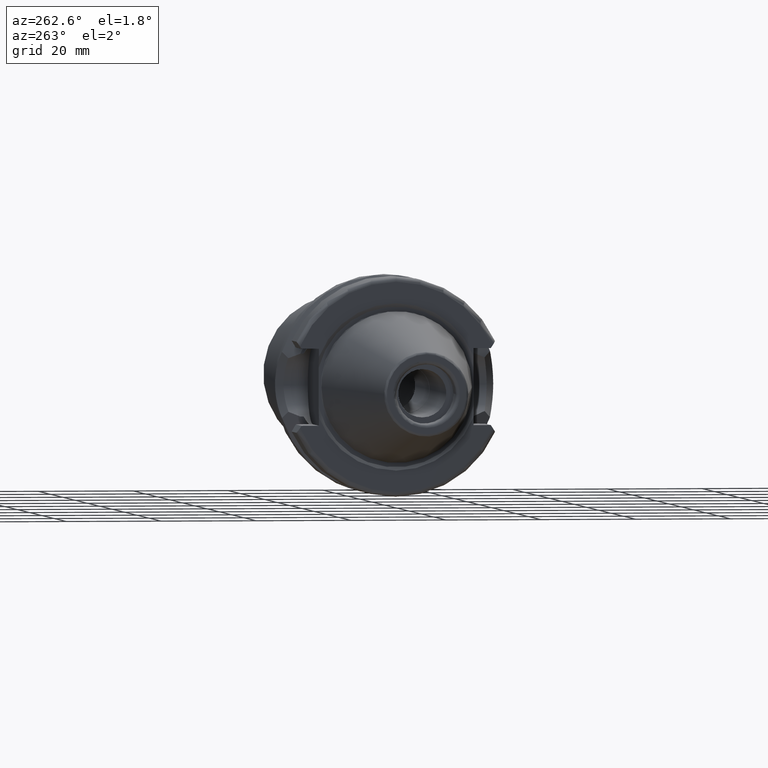
[diagram: clean part render]
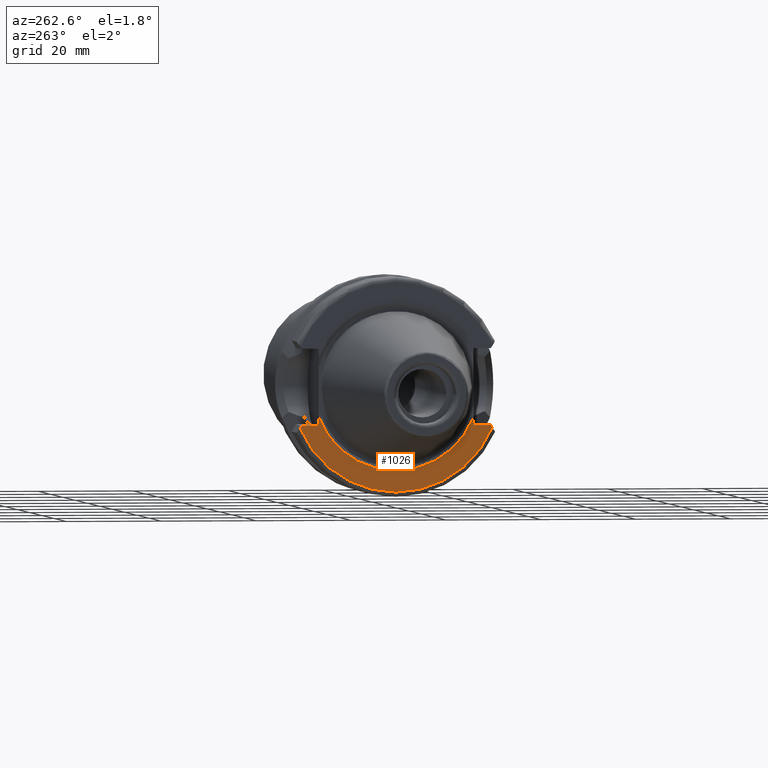
[diagram: same view with one face highlighted and labeled with its STEP entity id]
A machine part, auxiliary view. The second image highlights one B-rep face of the part: STEP entity #1026.
In plain terms, the highlighted planar face has unit normal (-1, -0, 0).
Its self-contained STEP definition (entity closure, byte-faithful):
#86=PLANE('',#1147);
#105=LINE('',#1712,#159);
#113=LINE('',#1886,#167);
#127=LINE('',#1938,#181);
#128=LINE('',#1945,#182);
#133=LINE('',#1972,#187);
#134=LINE('',#1973,#188);
#159=VECTOR('',#1289,10.);
#167=VECTOR('',#1331,10.);
#181=VECTOR('',#1365,10.);
#182=VECTOR('',#1368,10.);
#187=VECTOR('',#1387,10.);
#188=VECTOR('',#1388,10.);
#257=FACE_OUTER_BOUND('',#323,.T.);
#323=EDGE_LOOP('',(#850,#851,#852,#853,#854,#855,#856,#857));
#378=CIRCLE('',#1120,22.);
#389=CIRCLE('',#1148,17.5);
#443=VERTEX_POINT('',#1692);
#447=VERTEX_POINT('',#1710);
#455=VERTEX_POINT('',#1744);
#471=VERTEX_POINT('',#1885);
#483=VERTEX_POINT('',#1936);
#484=VERTEX_POINT('',#1940);
#490=VERTEX_POINT('',#1969);
#491=VERTEX_POINT('',#1971);
#559=EDGE_CURVE('',#447,#443,#105,.T.);
#569=EDGE_CURVE('',#443,#455,#378,.T.);
#591=EDGE_CURVE('',#455,#471,#113,.T.);
#612=EDGE_CURVE('',#447,#483,#127,.T.);
#614=EDGE_CURVE('',#483,#484,#128,.T.);
#623=EDGE_CURVE('',#484,#490,#389,.T.);
#624=EDGE_CURVE('',#490,#491,#133,.T.);
#625=EDGE_CURVE('',#491,#471,#134,.T.);
#850=ORIENTED_EDGE('',*,*,#559,.F.);
#851=ORIENTED_EDGE('',*,*,#612,.T.);
#852=ORIENTED_EDGE('',*,*,#614,.T.);
#853=ORIENTED_EDGE('',*,*,#623,.T.);
#854=ORIENTED_EDGE('',*,*,#624,.T.);
#855=ORIENTED_EDGE('',*,*,#625,.T.);
#856=ORIENTED_EDGE('',*,*,#591,.F.);
#857=ORIENTED_EDGE('',*,*,#569,.F.);
#1026=ADVANCED_FACE('',(#257),#86,.T.);
#1120=AXIS2_PLACEMENT_3D('',#1745,#1303,#1304);
#1147=AXIS2_PLACEMENT_3D('',#1968,#1383,#1384);
#1148=AXIS2_PLACEMENT_3D('',#1970,#1385,#1386);
#1289=DIRECTION('',(9.04687337568E-22,-0.555710889784183,-0.831375611246367));
#1303=DIRECTION('center_axis',(1.,1.62798202122572E-21,0.));
#1304=DIRECTION('ref_axis',(0.,0.,-1.));
#1331=DIRECTION('',(9.04687337567998E-22,-0.555710889784182,0.831375611246369));
#1365=DIRECTION('',(-1.62798202122572E-21,1.,1.8165056519001E-37));
#1368=DIRECTION('',(0.,0.,1.));
#1383=DIRECTION('center_axis',(-1.,-1.62798202122572E-21,0.));
#1384=DIRECTION('ref_axis',(0.,0.,1.));
#1385=DIRECTION('center_axis',(1.,1.62798202122572E-21,0.));
#1386=DIRECTION('ref_axis',(0.,0.,-1.));
#1387=DIRECTION('',(0.,0.,-1.));
#1388=DIRECTION('',(-1.62798202122572E-21,1.,1.8165056519001E-37));
#1692=CARTESIAN_POINT('',(0.999999999999995,-20.2740288143944,-8.54188244083847));
#1710=CARTESIAN_POINT('',(0.999999999999995,-19.9452430944744,-8.05000000000001));
#1712=CARTESIAN_POINT('',(0.999999999999995,-11.8560751464234,4.05186280477111));
#1744=CARTESIAN_POINT('',(0.999999999999995,20.2740288143944,-8.54188244083848));
#1745=CARTESIAN_POINT('Origin',(0.999999999999995,2.08173719760987E-15,
0.));
#1885=CARTESIAN_POINT('',(0.999999999999995,19.9452430944744,-8.05000000000001));
#1886=CARTESIAN_POINT('',(0.999999999999995,18.6499961929674,-6.11223576998182));
#1936=CARTESIAN_POINT('',(0.999999999999995,-16.3,-8.05));
#1938=CARTESIAN_POINT('',(0.999999999999995,2.85,-8.05000000000001));
#1940=CARTESIAN_POINT('',(0.999999999999995,-16.3,-6.36867333123631));
#1945=CARTESIAN_POINT('',(0.999999999999995,-16.3,-2.77555756156289E-16));
#1968=CARTESIAN_POINT('Origin',(0.999999999999995,22.,0.));
#1969=CARTESIAN_POINT('',(0.999999999999995,16.3,-6.36867333123631));
#1970=CARTESIAN_POINT('Origin',(1.00000000000001,2.08173719760987E-15,0.));
#1971=CARTESIAN_POINT('',(0.999999999999995,16.3,-8.05));
#1972=CARTESIAN_POINT('',(0.999999999999995,16.3,-2.77555756156289E-16));
#1973=CARTESIAN_POINT('',(0.999999999999995,19.15,-8.05000000000001));